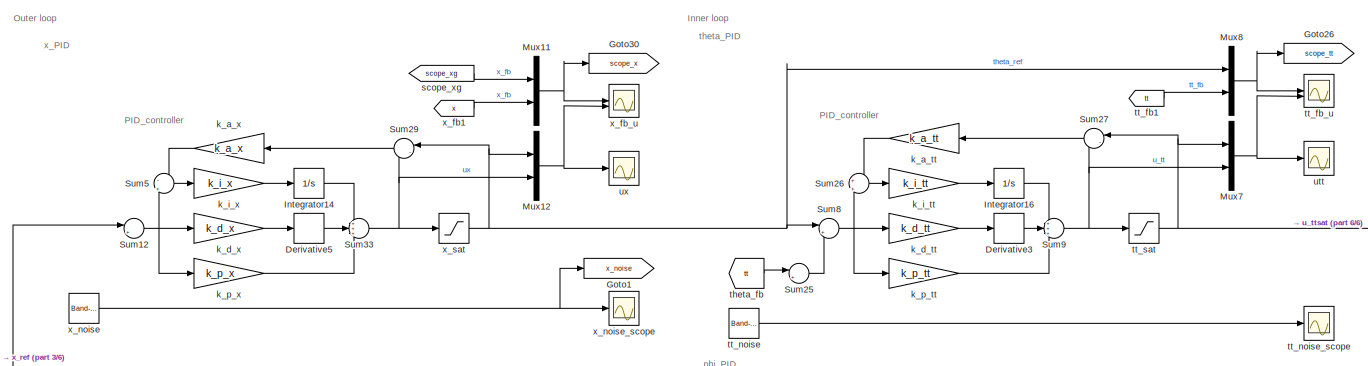
[diagram: root canvas - part 1/6, top center region]
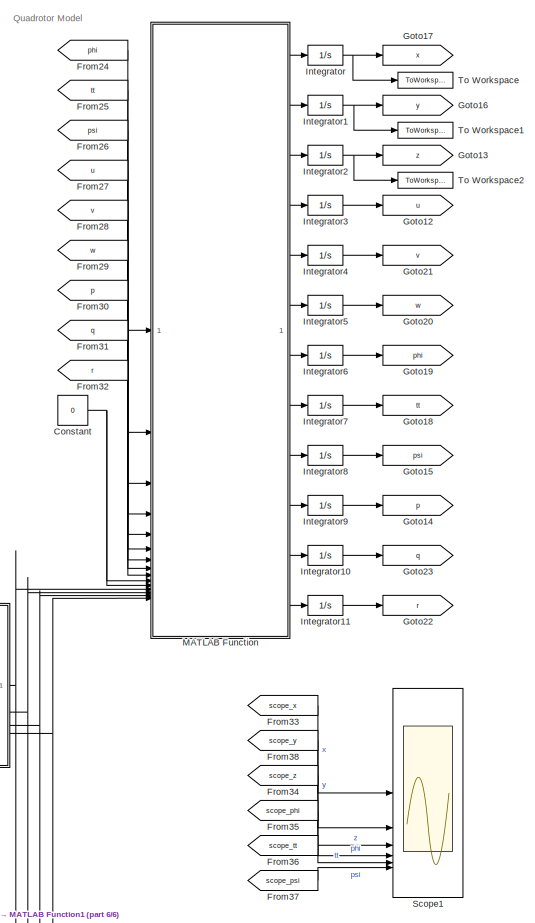
[diagram: root canvas - part 2/6, middle right region]
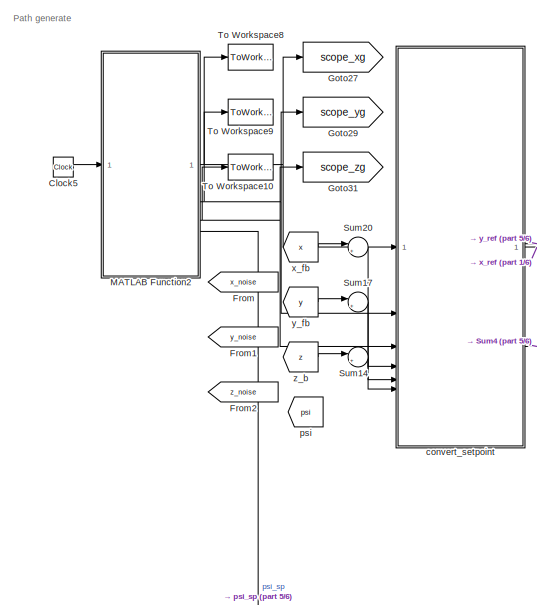
[diagram: root canvas - part 3/6, middle left region]
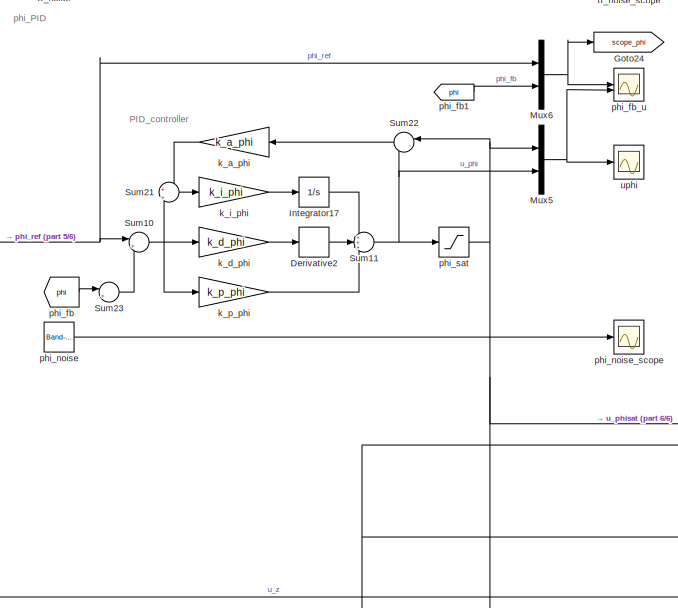
[diagram: root canvas - part 4/6, central region]
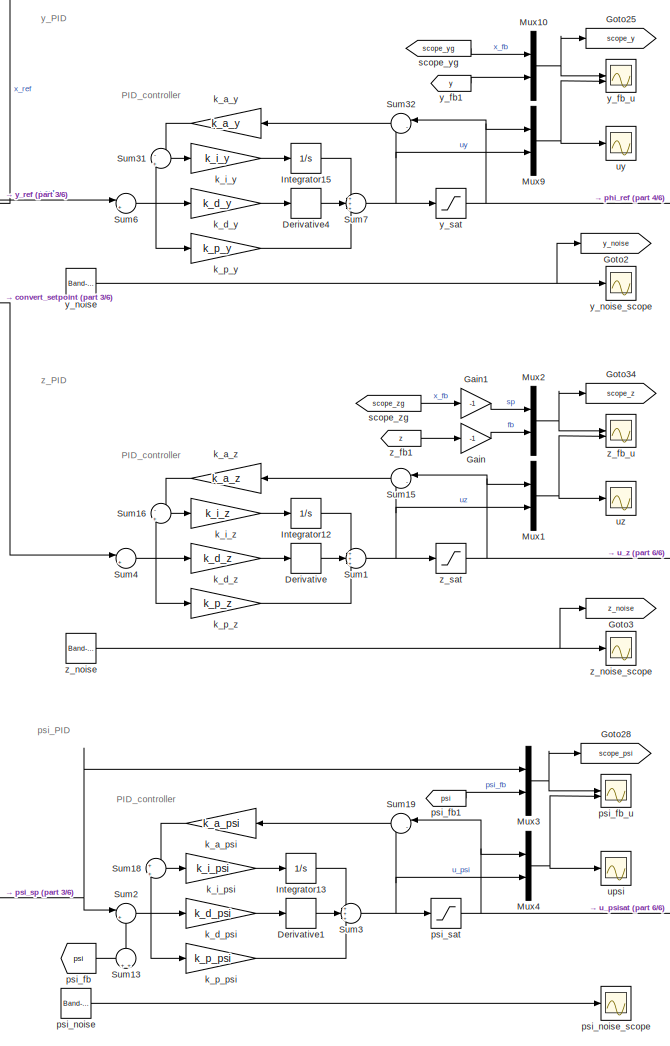
[diagram: root canvas - part 5/6, middle left region]
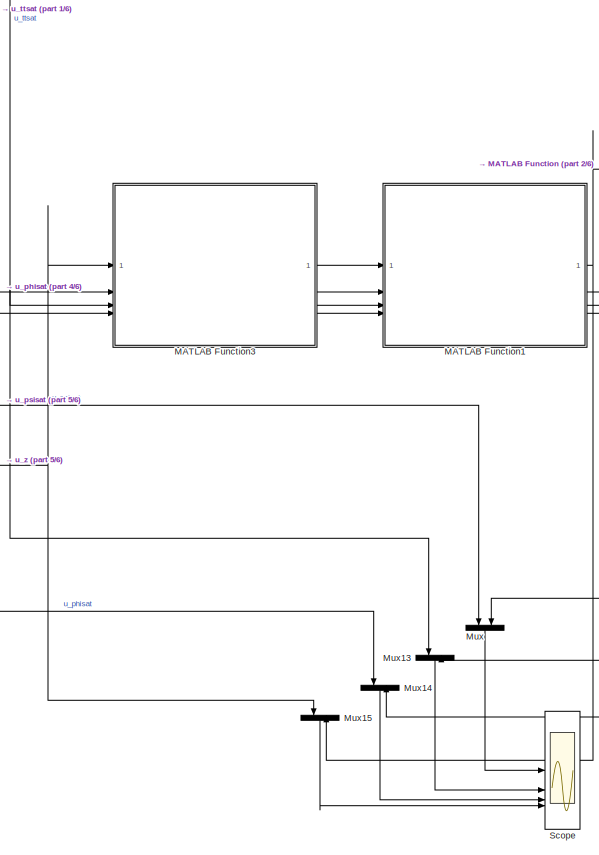
[diagram: root canvas - part 6/6, middle right region]
MODEL slx_a1bd290377aa
KIND model
CONFIG AbsTol = auto
CONFIG EnableMultiTasking = off
CONFIG FixedStep = 1e-3
CONFIG InitFcn = % close;\n% % % z\nk_p_z = -4;\nk_i_z = -.5;\nk_d_z = -8;\nk_a_z = -2;\n% % \n% % % psi\nk_p_psi = 5.8;\nk_i_psi = 0;\nk_d_psi = .8;\nk_a_psi = 0;\n% % \n% % phi\nk_p_phi = 1;\nk_d_phi = .3;\n%\n% % tt\nk_p_tt = 1;\nk_d_tt = .3;\n%\n% % x\nk_p_x = -5.99;\nk_i_x = -2.8;\nk_d_x = -1.244;\nk_a_x = -7.94;\n%\n% % y\nk_p_y = 5.99;\nk_i_y = 2.8;\nk_d_y = 1.244;\nk_a_y = 7.94;
CONFIG MaxStep = auto
CONFIG MinStep = auto
CONFIG RelTol = 1e-3
CONFIG SampleTimeConstraint = Unconstrained
CONFIG SolverName = FixedStepAuto
CONFIG StartTime = 0.0
CONFIG StopFcn = plot3(x,y,-z,['b','-'],x_g,y_g,-z_g,['r','--'],'LineWidth',1.25);\nxlabel('x');\nylabel('y');\nzlabel('z');\ngrid on;
CONFIG StopTime = 250
BLOCK [Clock] Clock5
BLOCK [Constant] Constant
  Value = 0
BLOCK [Derivative] Derivative
BLOCK [Derivative] Derivative1
BLOCK [Derivative] Derivative2
BLOCK [Derivative] Derivative3
BLOCK [Derivative] Derivative4
BLOCK [Derivative] Derivative5
BLOCK [From] From
  GotoTag = x_noise
BLOCK [From] From1
  GotoTag = y_noise
BLOCK [From] From2
  GotoTag = z_noise
BLOCK [From] From24
  GotoTag = phi
BLOCK [From] From25
  GotoTag = tt
BLOCK [From] From26
  GotoTag = psi
BLOCK [From] From27
  GotoTag = u
BLOCK [From] From28
  GotoTag = v
BLOCK [From] From29
  GotoTag = w
BLOCK [From] From30
  GotoTag = p
BLOCK [From] From31
  GotoTag = q
BLOCK [From] From32
  GotoTag = r
BLOCK [From] From33
  GotoTag = scope_x
BLOCK [From] From34
  GotoTag = scope_z
BLOCK [From] From35
  GotoTag = scope_phi
BLOCK [From] From36
  GotoTag = scope_tt
BLOCK [From] From37
  GotoTag = scope_psi
BLOCK [From] From38
  GotoTag = scope_y
BLOCK [Gain] Gain
  Gain = -1
BLOCK [Gain] Gain1
  Gain = -1
BLOCK [Goto] Goto1
  GotoTag = x_noise
BLOCK [Goto] Goto12
  GotoTag = u
BLOCK [Goto] Goto13
  GotoTag = z
BLOCK [Goto] Goto14
  GotoTag = p
BLOCK [Goto] Goto15
  GotoTag = psi
BLOCK [Goto] Goto16
  GotoTag = y
BLOCK [Goto] Goto17
  GotoTag = x
BLOCK [Goto] Goto18
  GotoTag = tt
BLOCK [Goto] Goto19
  GotoTag = phi
BLOCK [Goto] Goto2
  GotoTag = y_noise
BLOCK [Goto] Goto20
  GotoTag = w
BLOCK [Goto] Goto21
  GotoTag = v
BLOCK [Goto] Goto22
  GotoTag = r
BLOCK [Goto] Goto23
  GotoTag = q
BLOCK [Goto] Goto24
  GotoTag = scope_phi
BLOCK [Goto] Goto25
  GotoTag = scope_y
BLOCK [Goto] Goto26
  GotoTag = scope_tt
BLOCK [Goto] Goto27
  GotoTag = scope_xg
BLOCK [Goto] Goto28
  GotoTag = scope_psi
BLOCK [Goto] Goto29
  GotoTag = scope_yg
BLOCK [Goto] Goto3
  GotoTag = z_noise
BLOCK [Goto] Goto30
  GotoTag = scope_x
BLOCK [Goto] Goto31
  GotoTag = scope_zg
BLOCK [Goto] Goto34
  GotoTag = scope_z
BLOCK [Integrator] Integrator
  LimitOutput = on
  LowerSaturationLimit = -10000
  UpperSaturationLimit = 10000
BLOCK [Integrator] Integrator1
  LimitOutput = on
  LowerSaturationLimit = -10000
  UpperSaturationLimit = 10000
BLOCK [Integrator] Integrator10
  LimitOutput = on
  LowerSaturationLimit = -100
  UpperSaturationLimit = 100
BLOCK [Integrator] Integrator11
  LimitOutput = on
  LowerSaturationLimit = -100
  UpperSaturationLimit = 100
BLOCK [Integrator] Integrator12
  LimitOutput = on
  LowerSaturationLimit = -1000
  UpperSaturationLimit = 1000
BLOCK [Integrator] Integrator13
  LimitOutput = on
  LowerSaturationLimit = -1000
  UpperSaturationLimit = 1000
BLOCK [Integrator] Integrator14
  LimitOutput = on
  LowerSaturationLimit = -1000
  UpperSaturationLimit = 1000
BLOCK [Integrator] Integrator15
  LimitOutput = on
  LowerSaturationLimit = -1000
  UpperSaturationLimit = 1000
BLOCK [Integrator] Integrator16
  Commented = on
BLOCK [Integrator] Integrator17
  Commented = on
  LimitOutput = on
  LowerSaturationLimit = -1000
  UpperSaturationLimit = 1000
BLOCK [Integrator] Integrator2
  LimitOutput = on
  LowerSaturationLimit = -1000
  UpperSaturationLimit = 0
BLOCK [Integrator] Integrator3
  LimitOutput = on
  LowerSaturationLimit = -10000
  UpperSaturationLimit = 10000
BLOCK [Integrator] Integrator4
  LimitOutput = on
  LowerSaturationLimit = -10000
  UpperSaturationLimit = 10000
BLOCK [Integrator] Integrator5
  LimitOutput = on
  LowerSaturationLimit = -10000
  UpperSaturationLimit = 10000
BLOCK [Integrator] Integrator6
  LimitOutput = on
  LowerSaturationLimit = -1000
  UpperSaturationLimit = 1000
BLOCK [Integrator] Integrator7
  LimitOutput = on
  LowerSaturationLimit = -1000
  UpperSaturationLimit = 1000
BLOCK [Integrator] Integrator8
  LimitOutput = on
  LowerSaturationLimit = -1000
  UpperSaturationLimit = 1000
BLOCK [Integrator] Integrator9
  LimitOutput = on
  LowerSaturationLimit = -100
  UpperSaturationLimit = 100
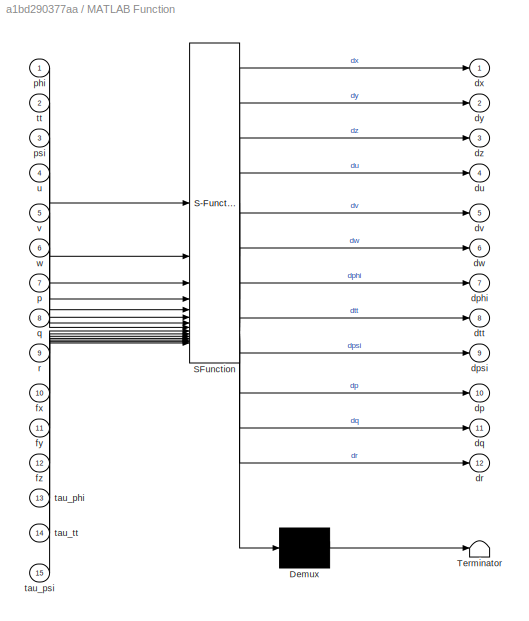
BLOCK [SubSystem] MATLAB Function
  ErrorFcn = Stateflow.Translate.translate
  LibrarySourceBlock = simulink/User-Defined\nFunctions/MATLAB Function
  PermitHierarchicalResolution = ExplicitOnly
  SFBlockType = MATLAB Function
  TreatAsAtomicUnit = on
BLOCK [Demux] MATLAB Function/ Demux 
  Outputs = 1
BLOCK [S-Function] MATLAB Function/ SFunction 
  EnableBusSupport = on
  FunctionName = sf_sfun
  PortCounts = [15 13]
  SFcnIsStateOwnerBlock = off
  SFunctionDeploymentMode = off
  Tag = Stateflow S-Function 2
BLOCK [Terminator] MATLAB Function/ Terminator 
BLOCK [Outport] MATLAB Function/dp
  Port = 10
BLOCK [Outport] MATLAB Function/dphi
  Port = 7
BLOCK [Outport] MATLAB Function/dpsi
  Port = 9
BLOCK [Outport] MATLAB Function/dq
  Port = 11
BLOCK [Outport] MATLAB Function/dr
  Port = 12
BLOCK [Outport] MATLAB Function/dtt
  Port = 8
BLOCK [Outport] MATLAB Function/du
  Port = 4
BLOCK [Outport] MATLAB Function/dv
  Port = 5
BLOCK [Outport] MATLAB Function/dw
  Port = 6
BLOCK [Outport] MATLAB Function/dx
BLOCK [Outport] MATLAB Function/dy
  Port = 2
BLOCK [Outport] MATLAB Function/dz
  Port = 3
BLOCK [Inport] MATLAB Function/fx
  Port = 10
BLOCK [Inport] MATLAB Function/fy
  Port = 11
BLOCK [Inport] MATLAB Function/fz
  Port = 12
BLOCK [Inport] MATLAB Function/p
  Port = 7
BLOCK [Inport] MATLAB Function/phi
BLOCK [Inport] MATLAB Function/psi
  Port = 3
BLOCK [Inport] MATLAB Function/q
  Port = 8
BLOCK [Inport] MATLAB Function/r
  Port = 9
BLOCK [Inport] MATLAB Function/tau_phi
  Port = 13
BLOCK [Inport] MATLAB Function/tau_psi
  Port = 15
BLOCK [Inport] MATLAB Function/tau_tt
  Port = 14
BLOCK [Inport] MATLAB Function/tt
  Port = 2
BLOCK [Inport] MATLAB Function/u
  Port = 4
BLOCK [Inport] MATLAB Function/v
  Port = 5
BLOCK [Inport] MATLAB Function/w
  Port = 6
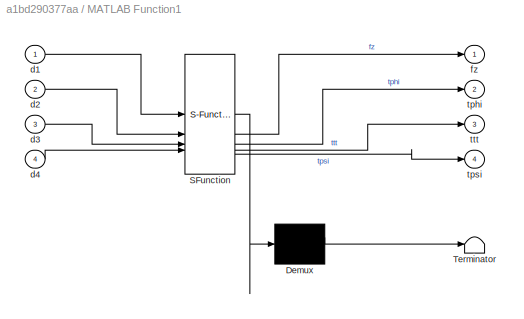
BLOCK [SubSystem] MATLAB Function1
  ErrorFcn = Stateflow.Translate.translate
  PermitHierarchicalResolution = ExplicitOnly
  SFBlockType = MATLAB Function
  TreatAsAtomicUnit = on
BLOCK [Demux] MATLAB Function1/ Demux 
  Outputs = 1
BLOCK [S-Function] MATLAB Function1/ SFunction 
  EnableBusSupport = on
  FunctionName = sf_sfun
  PortCounts = [4 5]
  SFcnIsStateOwnerBlock = off
  SFunctionDeploymentMode = off
  Tag = Stateflow S-Function 1
BLOCK [Terminator] MATLAB Function1/ Terminator 
BLOCK [Inport] MATLAB Function1/d1
BLOCK [Inport] MATLAB Function1/d2
  Port = 2
BLOCK [Inport] MATLAB Function1/d3
  Port = 3
BLOCK [Inport] MATLAB Function1/d4
  Port = 4
BLOCK [Outport] MATLAB Function1/fz
BLOCK [Outport] MATLAB Function1/tphi
  Port = 2
BLOCK [Outport] MATLAB Function1/tpsi
  Port = 4
BLOCK [Outport] MATLAB Function1/ttt
  Port = 3
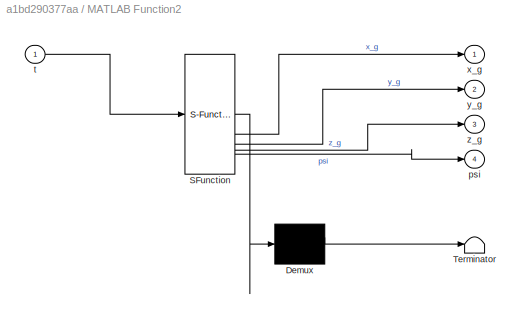
BLOCK [SubSystem] MATLAB Function2
  ErrorFcn = Stateflow.Translate.translate
  PermitHierarchicalResolution = ExplicitOnly
  SFBlockType = MATLAB Function
  TreatAsAtomicUnit = on
BLOCK [Demux] MATLAB Function2/ Demux 
  Outputs = 1
BLOCK [S-Function] MATLAB Function2/ SFunction 
  EnableBusSupport = on
  FunctionName = sf_sfun
  PortCounts = [1 5]
  SFcnIsStateOwnerBlock = off
  SFunctionDeploymentMode = off
  Tag = Stateflow S-Function 3
BLOCK [Terminator] MATLAB Function2/ Terminator 
BLOCK [Outport] MATLAB Function2/psi
  Port = 4
BLOCK [Inport] MATLAB Function2/t
BLOCK [Outport] MATLAB Function2/x_g
BLOCK [Outport] MATLAB Function2/y_g
  Port = 2
BLOCK [Outport] MATLAB Function2/z_g
  Port = 3
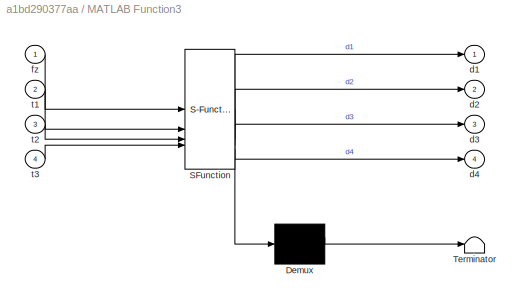
BLOCK [SubSystem] MATLAB Function3
  ErrorFcn = Stateflow.Translate.translate
  PermitHierarchicalResolution = ExplicitOnly
  SFBlockType = MATLAB Function
  TreatAsAtomicUnit = on
BLOCK [Demux] MATLAB Function3/ Demux 
  Outputs = 1
BLOCK [S-Function] MATLAB Function3/ SFunction 
  EnableBusSupport = on
  FunctionName = sf_sfun
  PortCounts = [4 5]
  SFcnIsStateOwnerBlock = off
  SFunctionDeploymentMode = off
  Tag = Stateflow S-Function 5
BLOCK [Terminator] MATLAB Function3/ Terminator 
BLOCK [Outport] MATLAB Function3/d1
BLOCK [Outport] MATLAB Function3/d2
  Port = 2
BLOCK [Outport] MATLAB Function3/d3
  Port = 3
BLOCK [Outport] MATLAB Function3/d4
  Port = 4
BLOCK [Inport] MATLAB Function3/fz
BLOCK [Inport] MATLAB Function3/t1
  Port = 2
BLOCK [Inport] MATLAB Function3/t2
  Port = 3
BLOCK [Inport] MATLAB Function3/t3
  Port = 4
BLOCK [Mux] Mux
  DisplayOption = bar
  Inputs = 2
  NameLocation = left
BLOCK [Mux] Mux1
  DisplayOption = bar
  Inputs = 2
  NameLocation = top
BLOCK [Mux] Mux10
  DisplayOption = bar
  Inputs = 2
  NameLocation = top
BLOCK [Mux] Mux11
  DisplayOption = bar
  Inputs = 2
  NameLocation = top
BLOCK [Mux] Mux12
  DisplayOption = bar
  Inputs = 2
  NameLocation = top
BLOCK [Mux] Mux13
  DisplayOption = bar
  Inputs = 2
  NameLocation = left
BLOCK [Mux] Mux14
  DisplayOption = bar
  Inputs = 2
  NameLocation = left
BLOCK [Mux] Mux15
  DisplayOption = bar
  Inputs = 2
  NameLocation = left
BLOCK [Mux] Mux2
  DisplayOption = bar
  Inputs = 2
  NameLocation = top
BLOCK [Mux] Mux3
  DisplayOption = bar
  Inputs = 2
  NameLocation = top
BLOCK [Mux] Mux4
  DisplayOption = bar
  Inputs = 2
  NameLocation = top
BLOCK [Mux] Mux5
  DisplayOption = bar
  Inputs = 2
  NameLocation = top
BLOCK [Mux] Mux6
  DisplayOption = bar
  Inputs = 2
  NameLocation = top
BLOCK [Mux] Mux7
  DisplayOption = bar
  Inputs = 2
  NameLocation = top
BLOCK [Mux] Mux8
  DisplayOption = bar
  Inputs = 2
  NameLocation = top
BLOCK [Mux] Mux9
  DisplayOption = bar
  Inputs = 2
  NameLocation = top
BLOCK [Scope] Scope
  Floating = off
  NumInputPorts = 4
  ScopeSpecificationString = Simulink.scopes.TimeScopeBlockCfg('CurrentConfiguration', extmgr.ConfigurationSet(extmgr.Configuration('Core','General UI',true,'FigureColor',[1 1 1]),extmgr.Configuration('Core','Source UI',true),extmgr.Configuration('Sources','WiredSimulink',true,'DataLoggingVariableName','ScopeData1'),extmgr.Configuration('Visuals','Time Domain',true,'SerializedDisplays',{struct('MinYLimReal','-0.03442','MaxYLi...<+4400ch>
BLOCK [Scope] Scope1
  Floating = off
  NumInputPorts = 6
  ScopeSpecificationString = Simulink.scopes.TimeScopeBlockCfg('CurrentConfiguration', extmgr.ConfigurationSet(extmgr.Configuration('Core','General UI',true,'FigureColor',[1 1 1]),extmgr.Configuration('Core','Source UI',true),extmgr.Configuration('Sources','WiredSimulink',true,'DataLoggingVariableName','ScopeData3'),extmgr.Configuration('Visuals','Time Domain',true,'SerializedDisplays',{struct('MinYLimReal','-12.08026','MaxYL...<+6317ch>
BLOCK [Sum] Sum1
  Inputs = +++
BLOCK [Sum] Sum10
  Inputs = |+-
BLOCK [Sum] Sum11
  Inputs = +++
BLOCK [Sum] Sum12
  Inputs = |++
BLOCK [Sum] Sum13
  Inputs = ++|
  NameLocation = right
BLOCK [Sum] Sum14
  Inputs = |++
BLOCK [Sum] Sum15
  Inputs = |-+
BLOCK [Sum] Sum16
  Inputs = -|+
BLOCK [Sum] Sum17
  Inputs = |++
BLOCK [Sum] Sum18
  Inputs = +|+
BLOCK [Sum] Sum19
  Inputs = |-+
BLOCK [Sum] Sum2
  Inputs = |+-
BLOCK [Sum] Sum20
  Inputs = |++
BLOCK [Sum] Sum21
  Commented = on
  Inputs = +|+
BLOCK [Sum] Sum22
  Inputs = |-+
BLOCK [Sum] Sum23
  Inputs = |++
BLOCK [Sum] Sum25
  Inputs = |++
BLOCK [Sum] Sum26
  Commented = on
  Inputs = +|+
BLOCK [Sum] Sum27
  Inputs = |-+
BLOCK [Sum] Sum29
  Inputs = |-+
BLOCK [Sum] Sum3
  Inputs = +++
BLOCK [Sum] Sum31
  Inputs = -|+
BLOCK [Sum] Sum32
  Inputs = |-+
BLOCK [Sum] Sum33
  Inputs = +++
BLOCK [Sum] Sum4
  Inputs = |++
BLOCK [Sum] Sum5
  Inputs = -|+
BLOCK [Sum] Sum6
  Inputs = |++
BLOCK [Sum] Sum7
  Inputs = +++
BLOCK [Sum] Sum8
  Inputs = |+-
BLOCK [Sum] Sum9
  Inputs = +++
BLOCK [ToWorkspace] To Workspace
  FixptAsFi = on
  MaxDataPoints = inf
  SampleTime = -1
  Save2DSignal = 2-D array (concatenate along first dimension)
  VariableName = x
BLOCK [ToWorkspace] To Workspace1
  FixptAsFi = on
  MaxDataPoints = inf
  SampleTime = -1
  Save2DSignal = 2-D array (concatenate along first dimension)
  VariableName = y
BLOCK [ToWorkspace] To Workspace10
  FixptAsFi = on
  MaxDataPoints = inf
  SampleTime = -1
  Save2DSignal = 2-D array (concatenate along first dimension)
  VariableName = z_g
BLOCK [ToWorkspace] To Workspace2
  FixptAsFi = on
  MaxDataPoints = inf
  SampleTime = -1
  Save2DSignal = 2-D array (concatenate along first dimension)
  VariableName = z
BLOCK [ToWorkspace] To Workspace8
  FixptAsFi = on
  MaxDataPoints = inf
  SampleTime = -1
  Save2DSignal = 2-D array (concatenate along first dimension)
  VariableName = x_g
BLOCK [ToWorkspace] To Workspace9
  FixptAsFi = on
  MaxDataPoints = inf
  SampleTime = -1
  Save2DSignal = 2-D array (concatenate along first dimension)
  VariableName = y_g
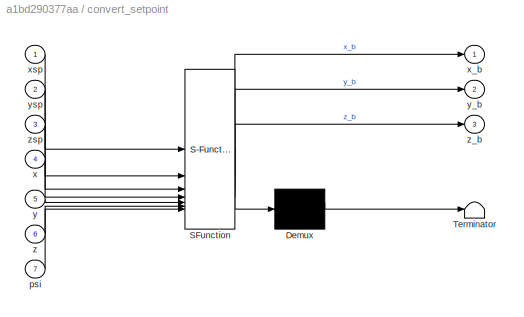
BLOCK [SubSystem] convert_setpoint
  ErrorFcn = Stateflow.Translate.translate
  PermitHierarchicalResolution = ExplicitOnly
  SFBlockType = MATLAB Function
  TreatAsAtomicUnit = on
BLOCK [Demux] convert_setpoint/ Demux 
  Outputs = 1
BLOCK [S-Function] convert_setpoint/ SFunction 
  EnableBusSupport = on
  FunctionName = sf_sfun
  PortCounts = [7 4]
  SFcnIsStateOwnerBlock = off
  SFunctionDeploymentMode = off
  Tag = Stateflow S-Function 4
BLOCK [Terminator] convert_setpoint/ Terminator 
BLOCK [Inport] convert_setpoint/psi
  Port = 7
BLOCK [Inport] convert_setpoint/x
  Port = 4
BLOCK [Outport] convert_setpoint/x_b
BLOCK [Inport] convert_setpoint/xsp
BLOCK [Inport] convert_setpoint/y
  Port = 5
BLOCK [Outport] convert_setpoint/y_b
  Port = 2
BLOCK [Inport] convert_setpoint/ysp
  Port = 2
BLOCK [Inport] convert_setpoint/z
  Port = 6
BLOCK [Outport] convert_setpoint/z_b
  Port = 3
BLOCK [Inport] convert_setpoint/zsp
  Port = 3
BLOCK [Gain] k_a_phi
  Commented = on
  Gain = k_a_phi
BLOCK [Gain] k_a_psi
  Gain = k_a_psi
BLOCK [Gain] k_a_tt
  Commented = on
  Gain = k_a_tt
BLOCK [Gain] k_a_x
  Gain = k_a_x
BLOCK [Gain] k_a_y
  Gain = k_a_y
BLOCK [Gain] k_a_z
  Gain = k_a_z
BLOCK [Gain] k_d_phi
  Gain = k_d_phi
BLOCK [Gain] k_d_psi
  Gain = k_d_psi
BLOCK [Gain] k_d_tt
  Gain = k_d_tt
BLOCK [Gain] k_d_x
  Gain = k_d_x
BLOCK [Gain] k_d_y
  Gain = k_d_y
BLOCK [Gain] k_d_z
  Gain = k_d_z
BLOCK [Gain] k_i_phi
  Commented = on
  Gain = k_i_phi
BLOCK [Gain] k_i_psi
  Gain = k_i_psi
BLOCK [Gain] k_i_tt
  Commented = on
  Gain = k_i_tt
BLOCK [Gain] k_i_x
  Gain = k_i_x
BLOCK [Gain] k_i_y
  Gain = k_i_y
BLOCK [Gain] k_i_z
  Gain = k_i_z
BLOCK [Gain] k_p_phi
  Gain = k_p_phi
BLOCK [Gain] k_p_psi
  Gain = k_p_psi
BLOCK [Gain] k_p_tt
  Gain = k_p_tt
BLOCK [Gain] k_p_x
  Gain = k_p_x
BLOCK [Gain] k_p_y
  Gain = k_p_y
BLOCK [Gain] k_p_z
  Gain = k_p_z
BLOCK [From] phi_fb
  GotoTag = phi
BLOCK [From] phi_fb1
  GotoTag = phi
  NameLocation = top
BLOCK [Scope] phi_fb_u
  Floating = off
  NumInputPorts = 2
  ScopeSpecificationString = Simulink.scopes.TimeScopeBlockCfg('CurrentConfiguration', extmgr.ConfigurationSet(extmgr.Configuration('Core','General UI',true,'FigureColor',[1 1 1]),extmgr.Configuration('Core','Source UI',true),extmgr.Configuration('Sources','WiredSimulink',true,'DataLoggingVariableName','ScopeData2'),extmgr.Configuration('Visuals','Time Domain',true,'SerializedDisplays',{struct('MinYLimReal','-3.62729','MaxYLi...<+2545ch>
BLOCK [Reference] phi_noise  REF=simulink/Sources/Band-Limited
White Noise
  SourceBlock = simulink/Sources/Band-Limited\nWhite Noise
  SourceType = Band-Limited White Noise.
BLOCK [Scope] phi_noise_scope
  Floating = off
  NumInputPorts = 1
  ScopeSpecificationString = Simulink.scopes.TimeScopeBlockCfg('CurrentConfiguration', extmgr.ConfigurationSet(extmgr.Configuration('Core','General UI',true,'FigureColor',[1 1 1]),extmgr.Configuration('Core','Source UI',true),extmgr.Configuration('Sources','WiredSimulink',true,'DataLoggingVariableName','ScopeData3'),extmgr.Configuration('Visuals','Time Domain',true,'SerializedDisplays',{struct('MinYLimReal','-0.45488','MaxYLi...<+1769ch>
BLOCK [Saturate] phi_sat
  LowerLimit = -100
  UpperLimit = 100
BLOCK [From] psi
  GotoTag = psi
BLOCK [From] psi_fb
  GotoTag = psi
BLOCK [From] psi_fb1
  GotoTag = psi
  NameLocation = top
BLOCK [Scope] psi_fb_u
  Floating = off
  NumInputPorts = 2
  ScopeSpecificationString = Simulink.scopes.TimeScopeBlockCfg('CurrentConfiguration', extmgr.ConfigurationSet(extmgr.Configuration('Core','General UI',true,'FigureColor',[1 1 1]),extmgr.Configuration('Core','Source UI',true),extmgr.Configuration('Sources','WiredSimulink',true,'DataLoggingVariableName','ScopeData4'),extmgr.Configuration('Visuals','Time Domain',true,'SerializedDisplays',{struct('MinYLimReal','-1.37671','MaxYLi...<+2538ch>
BLOCK [Reference] psi_noise  REF=simulink/Sources/Band-Limited
White Noise
  SourceBlock = simulink/Sources/Band-Limited\nWhite Noise
  SourceType = Band-Limited White Noise.
BLOCK [Scope] psi_noise_scope
  Floating = off
  NumInputPorts = 1
  ScopeSpecificationString = Simulink.scopes.TimeScopeBlockCfg('CurrentConfiguration', extmgr.ConfigurationSet(extmgr.Configuration('Core','General UI',true,'FigureColor',[1 1 1]),extmgr.Configuration('Core','Source UI',true),extmgr.Configuration('Sources','WiredSimulink',true,'DataLoggingVariableName','ScopeData5'),extmgr.Configuration('Visuals','Time Domain',true,'SerializedDisplays',{struct('MinYLimReal','-0.24478','MaxYLi...<+1765ch>
BLOCK [Saturate] psi_sat
  LowerLimit = -50
  UpperLimit = 50
BLOCK [From] scope_xg
  GotoTag = scope_xg
  NameLocation = top
BLOCK [From] scope_yg
  GotoTag = scope_yg
  NameLocation = top
BLOCK [From] scope_zg
  GotoTag = scope_zg
  NameLocation = top
BLOCK [From] theta_fb
  GotoTag = tt
BLOCK [From] tt_fb1
  GotoTag = tt
BLOCK [Scope] tt_fb_u
  Floating = off
  NumInputPorts = 2
  ScopeSpecificationString = Simulink.scopes.TimeScopeBlockCfg('CurrentConfiguration', extmgr.ConfigurationSet(extmgr.Configuration('Core','General UI',true,'FigureColor',[1 1 1]),extmgr.Configuration('Core','Source UI',true),extmgr.Configuration('Sources','WiredSimulink',true,'DataLoggingVariableName','ScopeData2'),extmgr.Configuration('Visuals','Time Domain',true,'SerializedDisplays',{struct('MinYLimReal','-0.02182','MaxYLi...<+2506ch>
BLOCK [Reference] tt_noise  REF=simulink/Sources/Band-Limited
White Noise
  SourceBlock = simulink/Sources/Band-Limited\nWhite Noise
  SourceType = Band-Limited White Noise.
BLOCK [Scope] tt_noise_scope
  Floating = off
  NumInputPorts = 1
  ScopeSpecificationString = Simulink.scopes.TimeScopeBlockCfg('CurrentConfiguration', extmgr.ConfigurationSet(extmgr.Configuration('Core','General UI',true,'FigureColor',[1 1 1]),extmgr.Configuration('Core','Source UI',true),extmgr.Configuration('Sources','WiredSimulink',true,'DataLoggingVariableName','ScopeData1'),extmgr.Configuration('Visuals','Time Domain',true,'SerializedDisplays',{struct('MinYLimReal','-0.45488','MaxYLi...<+1777ch>
BLOCK [Saturate] tt_sat
  LowerLimit = -100
  UpperLimit = 100
BLOCK [Scope] uphi
  Floating = off
  NumInputPorts = 1
  ScopeSpecificationString = Simulink.scopes.TimeScopeBlockCfg('CurrentConfiguration', extmgr.ConfigurationSet(extmgr.Configuration('Core','General UI',true,'FigureColor',[1 1 1]),extmgr.Configuration('Core','Source UI',true),extmgr.Configuration('Sources','WiredSimulink',true,'DataLoggingVariableName','ScopeData4'),extmgr.Configuration('Visuals','Time Domain',true,'SerializedDisplays',{struct('MinYLimReal','-1474.35818','Max...<+1807ch>
BLOCK [Scope] upsi
  Floating = off
  NumInputPorts = 1
  ScopeSpecificationString = Simulink.scopes.TimeScopeBlockCfg('CurrentConfiguration', extmgr.ConfigurationSet(extmgr.Configuration('Core','General UI',true,'FigureColor',[1 1 1]),extmgr.Configuration('Core','Source UI',true),extmgr.Configuration('Sources','WiredSimulink',true,'DataLoggingVariableName','ScopeData6'),extmgr.Configuration('Visuals','Time Domain',true,'SerializedDisplays',{struct('MinYLimReal','-1.00000','MaxYLi...<+1785ch>
BLOCK [Scope] utt
  Floating = off
  NumInputPorts = 1
  ScopeSpecificationString = Simulink.scopes.TimeScopeBlockCfg('CurrentConfiguration', extmgr.ConfigurationSet(extmgr.Configuration('Core','General UI',true,'FigureColor',[1 1 1]),extmgr.Configuration('Core','Source UI',true),extmgr.Configuration('Sources','WiredSimulink',true,'DataLoggingVariableName','ScopeData5'),extmgr.Configuration('Visuals','Time Domain',true,'SerializedDisplays',{struct('MinYLimReal','-0.67091','MaxYLi...<+1779ch>
BLOCK [Scope] ux
  Floating = off
  NumInputPorts = 1
  ScopeSpecificationString = Simulink.scopes.TimeScopeBlockCfg('CurrentConfiguration', extmgr.ConfigurationSet(extmgr.Configuration('Core','General UI',true,'FigureColor',[1 1 1]),extmgr.Configuration('Core','Source UI',true),extmgr.Configuration('Sources','WiredSimulink',true,'DataLoggingVariableName','ScopeData1'),extmgr.Configuration('Visuals','Time Domain',true,'SerializedDisplays',{struct('MinYLimReal','-1.43846','MaxYLi...<+1769ch>
BLOCK [Scope] uy
  Floating = off
  NumInputPorts = 1
  ScopeSpecificationString = Simulink.scopes.TimeScopeBlockCfg('CurrentConfiguration', extmgr.ConfigurationSet(extmgr.Configuration('Core','General UI',true,'FigureColor',[1 1 1]),extmgr.Configuration('Core','Source UI',true),extmgr.Configuration('Sources','WiredSimulink',true,'DataLoggingVariableName','ScopeData3'),extmgr.Configuration('Visuals','Time Domain',true,'SerializedDisplays',{struct('MinYLimReal','-1.43846','MaxYLi...<+1769ch>
BLOCK [Scope] uz
  Floating = off
  NumInputPorts = 1
  ScopeSpecificationString = Simulink.scopes.TimeScopeBlockCfg('CurrentConfiguration', extmgr.ConfigurationSet(extmgr.Configuration('Core','General UI',true,'FigureColor',[1 1 1]),extmgr.Configuration('Core','Source UI',true),extmgr.Configuration('Sources','WiredSimulink',true,'DataLoggingVariableName','ScopeData2'),extmgr.Configuration('Visuals','Time Domain',true,'SerializedDisplays',{struct('MinYLimReal','-111543.16991','M...<+1834ch>
BLOCK [From] x_fb
  GotoTag = x
BLOCK [From] x_fb1
  GotoTag = x
  NameLocation = top
BLOCK [Scope] x_fb_u
  Floating = off
  NumInputPorts = 2
  ScopeSpecificationString = Simulink.scopes.TimeScopeBlockCfg('CurrentConfiguration', extmgr.ConfigurationSet(extmgr.Configuration('Core','General UI',true,'FigureColor',[1 1 1]),extmgr.Configuration('Core','Source UI',true),extmgr.Configuration('Sources','WiredSimulink',true,'DataLoggingVariableName','ScopeData4'),extmgr.Configuration('Visuals','Time Domain',true,'SerializedDisplays',{struct('MinYLimReal','-10.63161','MaxYL...<+2529ch>
BLOCK [Reference] x_noise  REF=simulink/Sources/Band-Limited
White Noise
  SourceBlock = simulink/Sources/Band-Limited\nWhite Noise
  SourceType = Band-Limited White Noise.
BLOCK [Scope] x_noise_scope
  Floating = off
  NumInputPorts = 1
  ScopeSpecificationString = Simulink.scopes.TimeScopeBlockCfg('CurrentConfiguration', extmgr.ConfigurationSet(extmgr.Configuration('Core','General UI',true,'FigureColor',[1 1 1]),extmgr.Configuration('Core','Source UI',true),extmgr.Configuration('Sources','WiredSimulink',true,'DataLoggingVariableName','ScopeData2'),extmgr.Configuration('Visuals','Time Domain',true,'SerializedDisplays',{struct('MinYLimReal','-0.14048','MaxYLi...<+1776ch>
BLOCK [Saturate] x_sat
  LowerLimit = -pi/15
  UpperLimit = pi/15
BLOCK [From] y_fb
  GotoTag = y
BLOCK [From] y_fb1
  GotoTag = y
  NameLocation = top
BLOCK [Scope] y_fb_u
  Floating = off
  NumInputPorts = 2
  ScopeSpecificationString = Simulink.scopes.TimeScopeBlockCfg('CurrentConfiguration', extmgr.ConfigurationSet(extmgr.Configuration('Core','General UI',true,'FigureColor',[1 1 1]),extmgr.Configuration('Core','Source UI',true),extmgr.Configuration('Sources','WiredSimulink',true,'DataLoggingVariableName','ScopeData3'),extmgr.Configuration('Visuals','Time Domain',true,'SerializedDisplays',{struct('MinYLimReal','-10.48571','MaxYL...<+2541ch>
BLOCK [Reference] y_noise  REF=simulink/Sources/Band-Limited
White Noise
  SourceBlock = simulink/Sources/Band-Limited\nWhite Noise
  SourceType = Band-Limited White Noise.
BLOCK [Scope] y_noise_scope
  Floating = off
  NumInputPorts = 1
  ScopeSpecificationString = Simulink.scopes.TimeScopeBlockCfg('CurrentConfiguration', extmgr.ConfigurationSet(extmgr.Configuration('Core','General UI',true,'FigureColor',[1 1 1]),extmgr.Configuration('Core','Source UI',true),extmgr.Configuration('Sources','WiredSimulink',true,'DataLoggingVariableName','ScopeData1'),extmgr.Configuration('Visuals','Time Domain',true,'SerializedDisplays',{struct('MinYLimReal','-0.10353','MaxYLi...<+1776ch>
BLOCK [Saturate] y_sat
  LowerLimit = -pi/15
  UpperLimit = pi/15
BLOCK [From] z_b
  GotoTag = z
BLOCK [From] z_fb1
  GotoTag = z
  NameLocation = top
BLOCK [Scope] z_fb_u
  Floating = off
  NumInputPorts = 2
  ScopeSpecificationString = Simulink.scopes.TimeScopeBlockCfg('CurrentConfiguration', extmgr.ConfigurationSet(extmgr.Configuration('Core','General UI',true,'FigureColor',[1 1 1]),extmgr.Configuration('Core','Source UI',true),extmgr.Configuration('Sources','WiredSimulink',true,'DataLoggingVariableName','ScopeData6'),extmgr.Configuration('Visuals','Time Domain',true,'SerializedDisplays',{struct('MinYLimReal','-1.26558','MaxYLi...<+2529ch>
BLOCK [Reference] z_noise  REF=simulink/Sources/Band-Limited
White Noise
  SourceBlock = simulink/Sources/Band-Limited\nWhite Noise
  SourceType = Band-Limited White Noise.
BLOCK [Scope] z_noise_scope
  Floating = off
  NumInputPorts = 1
  ScopeSpecificationString = Simulink.scopes.TimeScopeBlockCfg('CurrentConfiguration', extmgr.ConfigurationSet(extmgr.Configuration('Core','General UI',true,'FigureColor',[1 1 1]),extmgr.Configuration('Core','Source UI',true),extmgr.Configuration('Sources','WiredSimulink',true),extmgr.Configuration('Visuals','Time Domain',true,'SerializedDisplays',{struct('MinYLimReal','-1.71469','MaxYLimReal','1.21402','YLabelReal','','MinYL...<+1737ch>
BLOCK [Saturate] z_sat
  LowerLimit = 0
  UpperLimit = 40
ANNOTATION (root): Inner loop
ANNOTATION (root): Outer loop
ANNOTATION (root): PID_controller
ANNOTATION (root): Path generate
ANNOTATION (root): Quadrotor Model
ANNOTATION (root): phi_PID
ANNOTATION (root): psi_PID
ANNOTATION (root): theta_PID
ANNOTATION (root): x_PID
ANNOTATION (root): y_PID
ANNOTATION (root): z_PID
LINE Clock5:1 -> MATLAB Function2:1
NET Constant:1 -> MATLAB Function:10, MATLAB Function:11
LINE Derivative1:1 -> Sum3:2
LINE Derivative2:1 -> Sum11:2
LINE Derivative3:1 -> Sum9:2
LINE Derivative4:1 -> Sum7:2
LINE Derivative5:1 -> Sum33:2
LINE Derivative:1 -> Sum1:2
LINE From24:1 -> MATLAB Function:1
LINE From25:1 -> MATLAB Function:2
LINE From26:1 -> MATLAB Function:3
LINE From27:1 -> MATLAB Function:4
LINE From28:1 -> MATLAB Function:5
LINE From29:1 -> MATLAB Function:6
LINE From30:1 -> MATLAB Function:7
LINE From31:1 -> MATLAB Function:8
LINE From32:1 -> MATLAB Function:9
LINE From33:1 -> Scope1:1
LINE From34:1 -> Scope1:3
LINE From35:1 -> Scope1:4
LINE From36:1 -> Scope1:5
LINE From37:1 -> Scope1:6
LINE From38:1 -> Scope1:2
LINE Gain1:1 -> Mux2:1
LINE Gain:1 -> Mux2:2
LINE Integrator10:1 -> Goto23:1
LINE Integrator11:1 -> Goto22:1
LINE Integrator12:1 -> Sum1:1
LINE Integrator13:1 -> Sum3:1
LINE Integrator14:1 -> Sum33:1
LINE Integrator15:1 -> Sum7:1
LINE Integrator16:1 -> Sum9:1
LINE Integrator17:1 -> Sum11:1
NET Integrator1:1 -> Goto16:1, To Workspace1:1
NET Integrator2:1 -> Goto13:1, To Workspace2:1
LINE Integrator3:1 -> Goto12:1
LINE Integrator4:1 -> Goto21:1
LINE Integrator5:1 -> Goto20:1
LINE Integrator6:1 -> Goto19:1
LINE Integrator7:1 -> Goto18:1
LINE Integrator8:1 -> Goto15:1
LINE Integrator9:1 -> Goto14:1
NET Integrator:1 -> Goto17:1, To Workspace:1
NET MATLAB Function1:1 -> MATLAB Function:12, Mux15:2
NET MATLAB Function1:2 -> MATLAB Function:13, Mux14:2
NET MATLAB Function1:3 -> MATLAB Function:14, Mux13:2
NET MATLAB Function1:4 -> MATLAB Function:15, Mux:2
NET MATLAB Function2:1 -> Goto27:1, To Workspace8:1, convert_setpoint:1
NET MATLAB Function2:2 -> Goto29:1, To Workspace9:1, convert_setpoint:2
NET MATLAB Function2:3 -> Goto31:1, To Workspace10:1, convert_setpoint:3
NET MATLAB Function2:4 -> Mux3:1, Sum2:1
LINE MATLAB Function3:1 -> MATLAB Function1:1
LINE MATLAB Function3:2 -> MATLAB Function1:2
LINE MATLAB Function3:3 -> MATLAB Function1:3
LINE MATLAB Function3:4 -> MATLAB Function1:4
LINE MATLAB Function:1 -> Integrator:1
LINE MATLAB Function:10 -> Integrator9:1
LINE MATLAB Function:11 -> Integrator10:1
LINE MATLAB Function:12 -> Integrator11:1
LINE MATLAB Function:2 -> Integrator1:1
LINE MATLAB Function:3 -> Integrator2:1
LINE MATLAB Function:4 -> Integrator3:1
LINE MATLAB Function:5 -> Integrator4:1
LINE MATLAB Function:6 -> Integrator5:1
LINE MATLAB Function:7 -> Integrator6:1
LINE MATLAB Function:8 -> Integrator7:1
LINE MATLAB Function:9 -> Integrator8:1
NET Mux10:1 -> Goto25:1, y_fb_u:1
NET Mux11:1 -> Goto30:1, x_fb_u:1
NET Mux12:1 -> ux:1, x_fb_u:2
LINE Mux13:1 -> Scope:2
LINE Mux14:1 -> Scope:3
LINE Mux15:1 -> Scope:4
NET Mux1:1 -> uz:1, z_fb_u:2
NET Mux2:1 -> Goto34:1, z_fb_u:1
NET Mux3:1 -> Goto28:1, psi_fb_u:1
NET Mux4:1 -> psi_fb_u:2, upsi:1
NET Mux5:1 -> phi_fb_u:2, uphi:1
NET Mux6:1 -> Goto24:1, phi_fb_u:1
NET Mux7:1 -> tt_fb_u:2, utt:1
NET Mux8:1 -> Goto26:1, tt_fb_u:1
NET Mux9:1 -> uy:1, y_fb_u:2
LINE Mux:1 -> Scope:1
NET Sum10:1 -> Sum21:2, k_d_phi:1, k_p_phi:1
NET Sum11:1 -> Mux5:2, Sum22:2, phi_sat:1
NET Sum12:1 -> Sum5:2, k_d_x:1, k_p_x:1
LINE Sum13:1 -> Sum2:2
LINE Sum14:1 -> convert_setpoint:6
LINE Sum15:1 -> k_a_z:1
LINE Sum16:1 -> k_i_z:1
LINE Sum17:1 -> convert_setpoint:5
LINE Sum18:1 -> k_i_psi:1
LINE Sum19:1 -> k_a_psi:1
NET Sum1:1 -> Mux1:2, Sum15:2, z_sat:1
LINE Sum20:1 -> convert_setpoint:4
LINE Sum21:1 -> k_i_phi:1
LINE Sum22:1 -> k_a_phi:1
LINE Sum23:1 -> Sum10:2
LINE Sum25:1 -> Sum8:2
LINE Sum26:1 -> k_i_tt:1
LINE Sum27:1 -> k_a_tt:1
LINE Sum29:1 -> k_a_x:1
NET Sum2:1 -> Sum18:2, k_d_psi:1, k_p_psi:1
LINE Sum31:1 -> k_i_y:1
LINE Sum32:1 -> k_a_y:1
NET Sum33:1 -> Mux12:2, Sum29:2, x_sat:1
NET Sum3:1 -> Mux4:2, Sum19:2, psi_sat:1
NET Sum4:1 -> Sum16:2, k_d_z:1, k_p_z:1
LINE Sum5:1 -> k_i_x:1
NET Sum6:1 -> Sum31:2, k_d_y:1, k_p_y:1
NET Sum7:1 -> Mux9:2, Sum32:2, y_sat:1
NET Sum8:1 -> Sum26:2, k_d_tt:1, k_p_tt:1
NET Sum9:1 -> Mux7:2, Sum27:2, tt_sat:1
LINE convert_setpoint:1 -> Sum12:1
LINE convert_setpoint:2 -> Sum6:1
LINE convert_setpoint:3 -> Sum4:1
LINE k_a_phi:1 -> Sum21:1
LINE k_a_psi:1 -> Sum18:1
LINE k_a_tt:1 -> Sum26:1
LINE k_a_x:1 -> Sum5:1
LINE k_a_y:1 -> Sum31:1
LINE k_a_z:1 -> Sum16:1
LINE k_d_phi:1 -> Derivative2:1
LINE k_d_psi:1 -> Derivative1:1
LINE k_d_tt:1 -> Derivative3:1
LINE k_d_x:1 -> Derivative5:1
LINE k_d_y:1 -> Derivative4:1
LINE k_d_z:1 -> Derivative:1
LINE k_i_phi:1 -> Integrator17:1
LINE k_i_psi:1 -> Integrator13:1
LINE k_i_tt:1 -> Integrator16:1
LINE k_i_x:1 -> Integrator14:1
LINE k_i_y:1 -> Integrator15:1
LINE k_i_z:1 -> Integrator12:1
LINE k_p_phi:1 -> Sum11:3
LINE k_p_psi:1 -> Sum3:3
LINE k_p_tt:1 -> Sum9:3
LINE k_p_x:1 -> Sum33:3
LINE k_p_y:1 -> Sum7:3
LINE k_p_z:1 -> Sum1:3
LINE phi_fb1:1 -> Mux6:2
LINE phi_fb:1 -> Sum23:1
LINE phi_noise:1 -> phi_noise_scope:1
NET phi_sat:1 -> MATLAB Function3:2, Mux14:1, Mux5:1, Sum22:1
LINE psi_fb1:1 -> Mux3:2
LINE psi_fb:1 -> Sum13:1
LINE psi_noise:1 -> psi_noise_scope:1
NET psi_sat:1 -> MATLAB Function3:4, Mux4:1, Mux:1, Sum19:1
LINE scope_xg:1 -> Mux11:1
LINE scope_yg:1 -> Mux10:1
LINE scope_zg:1 -> Gain1:1
LINE theta_fb:1 -> Sum25:1
LINE tt_fb1:1 -> Mux8:2
LINE tt_noise:1 -> tt_noise_scope:1
NET tt_sat:1 -> MATLAB Function3:3, Mux13:1, Mux7:1, Sum27:1
LINE x_fb1:1 -> Mux11:2
LINE x_fb:1 -> Sum20:1
NET x_noise:1 -> Goto1:1, x_noise_scope:1
NET x_sat:1 -> Mux12:1, Mux8:1, Sum29:1, Sum8:1
LINE y_fb1:1 -> Mux10:2
LINE y_fb:1 -> Sum17:1
NET y_noise:1 -> Goto2:1, y_noise_scope:1
NET y_sat:1 -> Mux6:1, Mux9:1, Sum10:1, Sum32:1
LINE z_b:1 -> Sum14:1
LINE z_fb1:1 -> Gain:1
NET z_noise:1 -> Goto3:1, z_noise_scope:1
NET z_sat:1 -> MATLAB Function3:1, Mux15:1, Mux1:1, Sum15:1
note: NET lines group one-source signal fan-out (src -> all destinations, sorted); 1:1 wires keep LINE
CHART MATLAB Function3 states=1 transitions=1
  STATE_LABEL 'eML_blk_kernel()'
  STATE_LABEL 'SCRIPT:\nfunction [d1,d2,d3,d4] = M(fz,t1,t2,t3)\n\nfz = fz+200;\n\nd1=4.7438*fz + 33.3333*t1 + -33.3333*t2 + 41.6667*t3;\nif (d1<0) \n    d1=0; \nend\nif (d1>10000)\n    d1=10000;\nend\nd1=sqrt(d1);\n\nd2=4.7438*fz + -33.3333*t1 + -33.3333*t2 + -41.6667*t3;\nif (d2<0)\n    d2=0;\nend\nif (d2>10000)\n    d2=10000;\nend\nd2=sqrt(d2);\n\nd3=4.7438*fz + 33.3333*t1 + 33.3333*t2 + -41.6667*t3;\nif (d3<0)\n    d3=0;\nend\nif (d3>...<+162ch>'
CHART MATLAB Function1 states=1 transitions=1
  STATE_LABEL 'eML_blk_kernel()'
  STATE_LABEL 'SCRIPT:\nfunction [fz,tphi,ttt,tpsi] = Motor_dynamics(d1,d2,d3,d4)\n\nd1=d1*d1;\nd2=d2*d2;\nd3=d3*d3;\nd4=d4*d4;\n\nfz=0.05*(d1+d2+d3+d4)-200;\ntphi=0.0075*(d1-d2+d3-d4);\nttt=.0075*(-d1-d2+d3+d4);\ntpsi=.006*(d1-d2-d3+d4);'
CHART MATLAB Function states=1 transitions=1
  STATE_LABEL 'eML_blk_kernel()'
  STATE_LABEL 'SCRIPT:\nfunction [dx,dy,dz,du,dv,dw,dphi,dtt,dpsi,dp,dq,dr]=Dynamics_plustype(phi,tt,psi,u,v,w,p,q,r,fx,fy,fz,tau_phi,tau_tt,tau_psi)\n\n% Eqs. 16-19\n\nM = 1.2;\nm = .075;\ng = 9.81;\nR = .1;\nl = .22;\n\nJx = .4*M*R*R+2*l*l*m;\nJy = .4*M*R*R+2*l*l*m;\nJz = .4*M*R*R+4*l*l*m;\n\ndx = cos(tt)*cos(psi)*u+(sin(phi)*sin(tt)*cos(psi)-cos(phi)*sin(psi))*v+(cos(phi)*sin(tt)*cos(psi)+sin(phi)*sin(psi))*w;\ndy = cos(tt)*...<+492ch>'
CHART MATLAB Function2 states=1 transitions=1
  STATE_LABEL 'eML_blk_kernel()'
  STATE_LABEL 'SCRIPT:\nfunction [x_g,y_g,z_g,psi] = path_ground(t)\n\n% psi = 100-100*exp(-.02*t);\npsi = 0;\n% psi = sin(.05*t);\n% psi = t/2;\n\n% x_g=0;\n% y_g=0;\n% if t<30\n%     z_g = -10;\n% elseif t<70\n%     z_g = -20;\n% elseif t<100\n%     z_g = -30;\n% else\n%     z_g = 0;\n% end\n\nA = 10; % x range\na = 5; % grid x\nB = 10; % y range\nb = 4; % grid y\nC = 10;% z range \ncoef = .07;\nx_g = (A-.2*exp(-.014*(t-279.4)))*cos(a*...<+1454ch>'
CHART convert_setpoint states=1 transitions=1
  STATE_LABEL 'eML_blk_kernel()'
  STATE_LABEL 'SCRIPT:\n% Ground setpoint to body\nfunction [x_b,y_b,z_b] = convert_setpoint(xsp,ysp,zsp,x,y,z,psi)\nxyz_sp_g = [xsp ysp zsp 1];\n\n% R_body_to_ground = [cos(psi)*cos(theta) cos(psi)*sin(theta)*sin(phi)-sin(psi)*cos(phi) cos(psi)*sin(theta)*cos(phi)+sin(psi)*sin(phi);\n%                     sin(psi)*cos(theta) sin(psi)*sin(theta)*sin(phi)+cos(psi)*cos(phi) sin(psi)*sin(theta)*cos(phi)-cos(psi)*sin(phi)...<+1038ch>'
CHART  states=0 transitions=0
CHART  states=0 transitions=0
CHART  states=0 transitions=0
CHART  states=0 transitions=0
CHART  states=0 transitions=0
